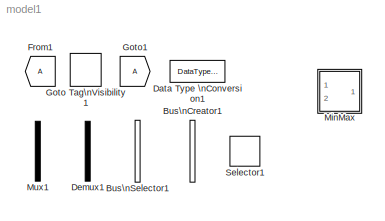
MODEL model1
KIND model
BLOCK [BusCreator] Bus\nCreator1
  DisplayOption = bar
  Inputs = 2
  Ports = [2, 1]
BLOCK [BusSelector] Bus\nSelector1
  OutputSignals = empty
  Ports = [1, 1]
BLOCK [DataTypeConversion] Data Type \nConversion1
  OutDataTypeMode = double
BLOCK [Demux] Demux1
  Outputs = 2
  Ports = [1, 2]
BLOCK [From] From1
  CloseFcn = tagdialog Close
  GotoTag = A
BLOCK [GotoTagVisibility] Goto Tag\nVisibility1
BLOCK [Goto] Goto1
  GotoTag = A
  TagVisibility = local
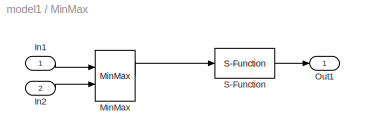
BLOCK [SubSystem] MinMax
  AncestorBlock = tllib/MinMax
  CopyFcn = if exist('tl_reset_reviewflag') == 2, tl_reset_reviewflag(gcbh); end
  DeleteFcn = delete_tlblock(gcbh)
  FunctionWithSeparateData = off
  MaskCallbackString = |||||
  MaskDescription = TargetLink MinMax block:\nOutput is the minimum/maximum of all inputs.
  MaskDisplay = plot([-0.05,1.05],[0.01,0.01],[-0.05,1.05],[0.99,0.99]);\ndisp(dispstr);
  MaskEnableString = on,on,on,on,on,on
  MaskHelp = eval(['tl_online_help(''Topic'',''',get_param(gcbh,'MaskType'),''')'])
  MaskHideContents = off
  MaskIconFrame = on
  MaskIconOpaque = on
  MaskIconRotate = none
  MaskIconUnits = normalized
  MaskInitialization = hBlock = gcbh;\nblockPath = getfullname(hBlock);\nset_param(hBlock, 'flp_block', flp_block);\ntlData = eval(data);\nmmObj = get_param([blockPath, '/MinMax'], 'Object');\nmmObj.Function = tlData.function;\ntry\n    mmObj.InputSameDT = 'off';\nend\ndispstr = tlData.function;\n\n% adapt block content if necessary\nblkObj = get_param(hBlock, 'Object');\nrequiredNumInputs = eval(tlData.inputs);\ncurren...<+1292ch>
  MaskPromptString = data:|lower_limit:|upper_limit:|flp_block:|slscaleparams:|help:
  MaskSelfModifiable = on
  MaskStyleString = edit,edit,edit,edit,edit,edit
  MaskTabNameString = ,,,,,
  MaskToolTipString = on,on,on,on,on,on
  MaskTunableValueString = off,off,off,off,off,off
  MaskType = TL_MinMax
  MaskValueString = struct('comment',struct('text','','placement',1),'inputs','2','logdata',struct('maxnumvals',inf,'plotchannels',[],'loggingmode',3,'channels',1),'output',struct('variable','','description','','name','$S_$B','width',1,'address','','max',NaN,'min',NaN,'class','default','type','Int16','scaling','','lsb',1,'offset',0,'arb',0,'freeze',1,'unit','','autoscalingmode',1,'lowerheadroom',1,'upperheadroom',1,'...<+175ch>
  MaskVarAliasString = ,,,,,
  MaskVariables = data=&1;lower_limit=&2;upper_limit=&3;flp_block=&4;slscaleparams=&5;help=&6;
  MaskVisibilityString = on,on,on,on,on,on
  MinAlgLoopOccurrences = off
  NameChangeFcn = rename_tlblock(gcbh);
  OpenFcn = dstabdlg('create','tl_minmax_dlg',gcbh);
  Ports = [2, 1]
  RTWSystemCode = Auto
BLOCK [Inport] MinMax/In1
  IconDisplay = Port number
BLOCK [Inport] MinMax/In2
  IconDisplay = Port number
  Port = 2
BLOCK [MinMax] MinMax/MinMax
  Function = min
  InputSameDT = off
  Inputs = 2
  Ports = [2, 1]
BLOCK [Outport] MinMax/Out1
  IconDisplay = Port number
BLOCK [S-Function] MinMax/S-Function
  FunctionName = tl_log_s
  Parameters = data
  Ports = [1, 1]
BLOCK [Mux] Mux1
  Inputs = 2
  Ports = [2, 1]
BLOCK [Selector] Selector1
  Elements = [1 3]
  InputPortWidth = 3
  Ports = [1, 1]
LINE MinMax/In1:1 -> MinMax/MinMax:1
LINE MinMax/In2:1 -> MinMax/MinMax:2
LINE MinMax/MinMax:1 -> MinMax/S-Function:1
LINE MinMax/S-Function:1 -> MinMax/Out1:1
